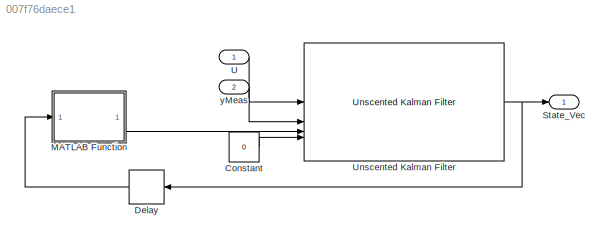
MODEL slx_007f76daece1
KIND model
CONFIG AbsTol = 1e-3
CONFIG EnableMultiTasking = on
CONFIG FixedStep = 0.003
CONFIG MaxStep = 0.4
CONFIG MinStep = auto
CONFIG RelTol = 1e-3
CONFIG SampleTimeConstraint = Unconstrained
CONFIG SolverName = FixedStepAuto
CONFIG StartTime = 0.0
CONFIG StopTime = 40
BLOCK [Constant] Constant
  OutDataTypeStr = single
  SampleTime = 0.003
  Value = 0
BLOCK [Delay] Delay
  DelayLength = 1
  InputPortMap = u0
  NameLocation = top
  SampleTime = 0.003
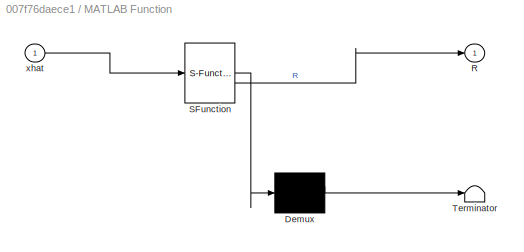
BLOCK [SubSystem] MATLAB Function
  ErrorFcn = Stateflow.Translate.translate
  PermitHierarchicalResolution = ExplicitOnly
  SFBlockType = MATLAB Function
  TreatAsAtomicUnit = on
BLOCK [Demux] MATLAB Function/ Demux 
  Outputs = 1
BLOCK [S-Function] MATLAB Function/ SFunction 
  EnableBusSupport = off
  FunctionName = sf_sfun
  PortCounts = [1 2]
  SFcnIsStateOwnerBlock = off
  SFunctionDeploymentMode = off
  Tag = Stateflow S-Function 2
BLOCK [Terminator] MATLAB Function/ Terminator 
BLOCK [Outport] MATLAB Function/R
BLOCK [Inport] MATLAB Function/xhat
BLOCK [Outport] State_Vec
  OutDataTypeStr = single
  PortDimensions = 6
  SampleTime = [0.0030000000000000001,0]
  SamplingMode = Sample based
  SignalType = real
BLOCK [Inport] U
  LockScale = on
  OutDataTypeStr = single
  PortDimensions = 5
  SampleTime = [0.0030000000000000001,0]
BLOCK [Reference] Unscented Kalman Filter  REF=sharedTrackingLibrary/Unscented Kalman Filter
  LibrarySourceBlock = cstblocks/State Estimation/Unscented Kalman Filter
  SourceBlock = sharedTrackingLibrary/Unscented Kalman Filter
  SourceType = Unscented Kalman Filter
BLOCK [Inport] yMeas
  OutDataTypeStr = single
  Port = 2
  PortDimensions = 6
  SampleTime = [0.0030000000000000001,0]
LINE Constant:1 -> Unscented Kalman Filter:4
LINE Delay:1 -> MATLAB Function:1
LINE MATLAB Function:1 -> Unscented Kalman Filter:3
LINE U:1 -> Unscented Kalman Filter:1
NET Unscented Kalman Filter:1 -> Delay:1, State_Vec:1
LINE yMeas:1 -> Unscented Kalman Filter:2
note: NET lines group one-source signal fan-out (src -> all destinations, sorted); 1:1 wires keep LINE
CHART MATLAB Function states=1 transitions=1
  STATE_LABEL 'eML_blk_kernel()'
  STATE_LABEL 'SCRIPT:\nfunction R= fcn(xhat)\n\nvx_safe = max(abs(xhat(1)), 1e-3);\n\nif vx_safe < 2.0\n    R_cog = single(1e6);\nelse\n    R_cog = single((0.01 / vx_safe)^2);\nend\n\nR = single(diag([1e-3, R_cog, 5e-4, 1e-4, 1e-2, 1e-2]));'
CHART  states=0 transitions=0
